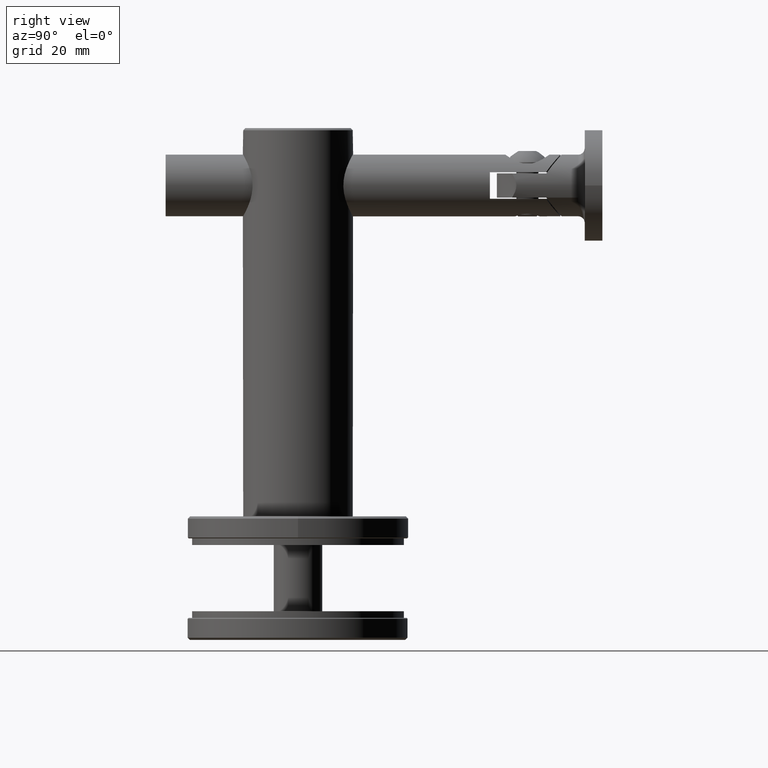
[diagram: clean part render]
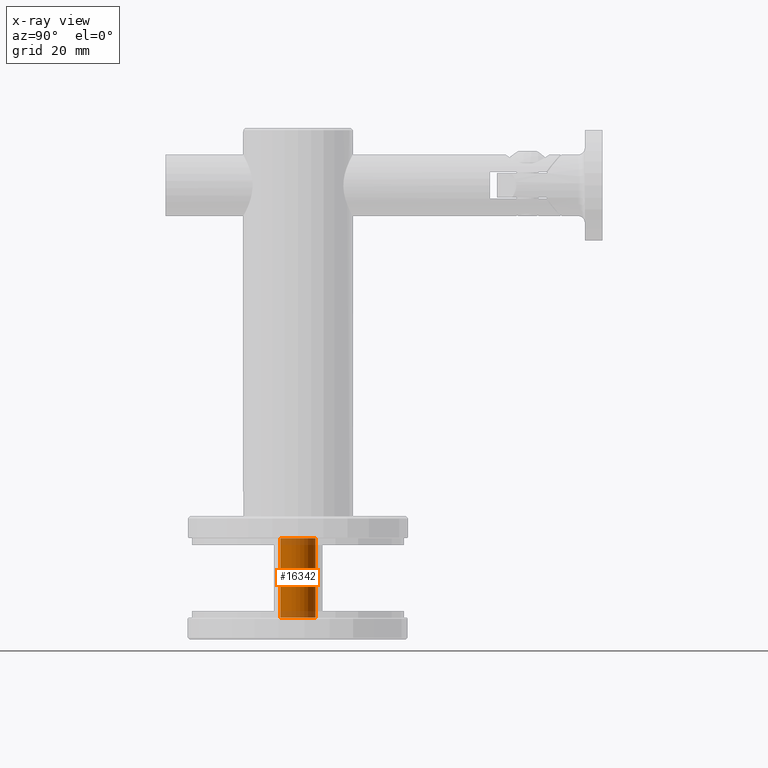
[diagram: x-ray — body ghosted, one internal face saturated and labeled with its STEP entity id]
A machine part, right view, then the same camera in x-ray: the body is ghosted and one INTERNAL B-rep face — a face not visible from any outside direction — is saturated and labeled: STEP entity #16342.
In plain terms, the highlighted cylindrical surface (bore or boss wall) has radius 4 mm, axis along (-0, -0, 1).
Its self-contained STEP definition (entity closure, byte-faithful):
#3 = DIRECTION ( 'NONE',  ( 0.0000000000000000000, 0.0000000000000000000, -1.000000000000000000 ) ) ;
#2086 = EDGE_CURVE ( 'NONE', #15957, #15957, #17028, .T. ) ;
#4140 = CIRCLE ( 'NONE', #12145, 4.000000000000000000 ) ;
#4173 = AXIS2_PLACEMENT_3D ( 'NONE', #17460, #4571, #7777 ) ;
#4571 = DIRECTION ( 'NONE',  ( 0.0000000000000000000, 1.000000000000000000, 0.0000000000000000000 ) ) ;
#6275 = ORIENTED_EDGE ( 'NONE', *, *, #2086, .T. ) ;
#6999 = AXIS2_PLACEMENT_3D ( 'NONE', #11615, #16452, #3 ) ;
#7777 = DIRECTION ( 'NONE',  ( 0.0000000000000000000, 0.0000000000000000000, 1.000000000000000000 ) ) ;
#9325 = CARTESIAN_POINT ( 'NONE',  ( 0.0000000000000000000, 0.0000000000000000000, 4.000000000000000000 ) ) ;
#9666 = FACE_OUTER_BOUND ( 'NONE', #19894, .T. ) ;
#9870 = EDGE_CURVE ( 'NONE', #13149, #13149, #4140, .T. ) ;
#11615 = CARTESIAN_POINT ( 'NONE',  ( 0.0000000000000000000, 18.00000000000000000, 0.0000000000000000000 ) ) ;
#12145 = AXIS2_PLACEMENT_3D ( 'NONE', #20511, #14059, #12486 ) ;
#12486 = DIRECTION ( 'NONE',  ( 0.0000000000000000000, 0.0000000000000000000, 1.000000000000000000 ) ) ;
#13149 = VERTEX_POINT ( 'NONE', #9325 ) ;
#14059 = DIRECTION ( 'NONE',  ( 0.0000000000000000000, 1.000000000000000000, 0.0000000000000000000 ) ) ;
#14111 = CARTESIAN_POINT ( 'NONE',  ( 0.0000000000000000000, 18.00000000000000000, 4.000000000000000000 ) ) ;
#14502 = FACE_OUTER_BOUND ( 'NONE', #17646, .T. ) ;
#15957 = VERTEX_POINT ( 'NONE', #14111 ) ;
#16342 = ADVANCED_FACE ( 'NONE', ( #9666, #14502 ), #18051, .F. ) ;
#16452 = DIRECTION ( 'NONE',  ( -0.0000000000000000000, -1.000000000000000000, -0.0000000000000000000 ) ) ;
#17028 = CIRCLE ( 'NONE', #4173, 4.000000000000000000 ) ;
#17460 = CARTESIAN_POINT ( 'NONE',  ( 0.0000000000000000000, 18.00000000000000000, 0.0000000000000000000 ) ) ;
#17646 = EDGE_LOOP ( 'NONE', ( #18664 ) ) ;
#18051 = CYLINDRICAL_SURFACE ( 'NONE', #6999, 4.000000000000000000 ) ;
#18664 = ORIENTED_EDGE ( 'NONE', *, *, #9870, .F. ) ;
#19894 = EDGE_LOOP ( 'NONE', ( #6275 ) ) ;
#20511 = CARTESIAN_POINT ( 'NONE',  ( 0.0000000000000000000, 0.0000000000000000000, 0.0000000000000000000 ) ) ;